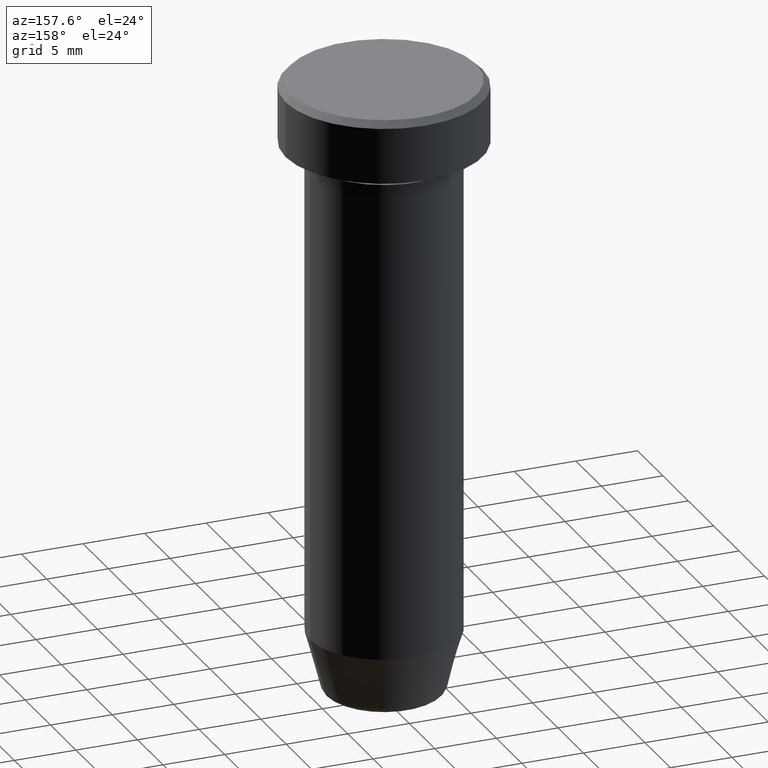
[diagram: clean part render]
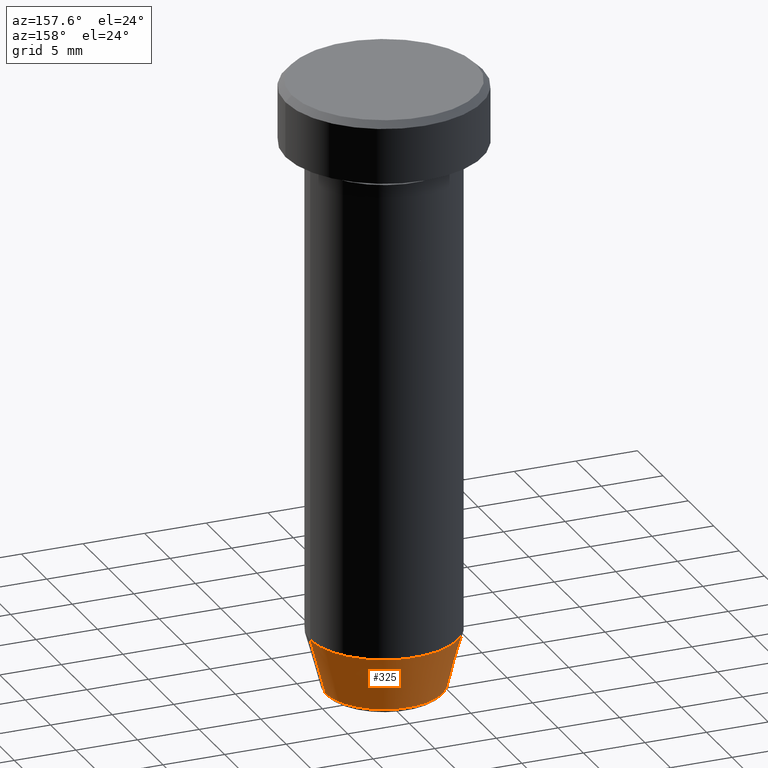
[diagram: same view with one face highlighted and labeled with its STEP entity id]
A machine part, auxiliary view. The second image highlights one B-rep face of the part: STEP entity #325.
In plain terms, the highlighted conical surface has half-angle 15 deg.
Its self-contained STEP definition (entity closure, byte-faithful):
#13 = DIRECTION ( 'NONE',  ( 1.000000000000000000, 0.000000000000000000, 0.000000000000000000 ) ) ;
#23 = ORIENTED_EDGE ( 'NONE', *, *, #183, .T. ) ;
#33 = VERTEX_POINT ( 'NONE', #175 ) ;
#54 = DIRECTION ( 'NONE',  ( -0.000000000000000000, -0.000000000000000000, 1.000000000000000000 ) ) ;
#72 = EDGE_LOOP ( 'NONE', ( #460, #23, #599, #135 ) ) ;
#80 = CARTESIAN_POINT ( 'NONE',  ( 4.660254037844383745, 0.000000000000000000, -50.00000000000000000 ) ) ;
#135 = ORIENTED_EDGE ( 'NONE', *, *, #572, .F. ) ;
#138 = AXIS2_PLACEMENT_3D ( 'NONE', #286, #343, #395 ) ;
#146 = VECTOR ( 'NONE', #461, 1000.000000000000114 ) ;
#168 = LINE ( 'NONE', #80, #146 ) ;
#175 = CARTESIAN_POINT ( 'NONE',  ( -6.000000000000000000, 7.347880794884119736E-16, -45.00000000000000000 ) ) ;
#183 = EDGE_CURVE ( 'NONE', #354, #33, #297, .T. ) ;
#213 = CIRCLE ( 'NONE', #138, 6.000000000000000000 ) ;
#244 = CARTESIAN_POINT ( 'NONE',  ( 0.000000000000000000, 0.000000000000000000, -50.00000000000000000 ) ) ;
#251 = CARTESIAN_POINT ( 'NONE',  ( 0.000000000000000000, 0.000000000000000000, -49.62940952255126348 ) ) ;
#261 = AXIS2_PLACEMENT_3D ( 'NONE', #251, #54, #568 ) ;
#286 = CARTESIAN_POINT ( 'NONE',  ( 0.000000000000000000, 0.000000000000000000, -45.00000000000000000 ) ) ;
#297 = LINE ( 'NONE', #499, #324 ) ;
#324 = VECTOR ( 'NONE', #411, 1000.000000000000114 ) ;
#325 = ADVANCED_FACE ( 'NONE', ( #566 ), #423, .T. ) ;
#341 = EDGE_CURVE ( 'NONE', #393, #33, #213, .T. ) ;
#343 = DIRECTION ( 'NONE',  ( -0.000000000000000000, -0.000000000000000000, 1.000000000000000000 ) ) ;
#346 = AXIS2_PLACEMENT_3D ( 'NONE', #244, #564, #13 ) ;
#354 = VERTEX_POINT ( 'NONE', #429 ) ;
#355 = EDGE_CURVE ( 'NONE', #364, #354, #442, .T. ) ;
#364 = VERTEX_POINT ( 'NONE', #437 ) ;
#393 = VERTEX_POINT ( 'NONE', #484 ) ;
#395 = DIRECTION ( 'NONE',  ( 1.000000000000000000, 0.000000000000000000, 0.000000000000000000 ) ) ;
#411 = DIRECTION ( 'NONE',  ( -0.2588190451025210170, 3.169619151431768639E-17, 0.9659258262890680902 ) ) ;
#423 = CONICAL_SURFACE ( 'NONE', #346, 4.660254037844383745, 0.2617993877991497409 ) ;
#429 = CARTESIAN_POINT ( 'NONE',  ( -4.759553456999439547, 6.588326350684602264E-16, -49.62940952255126348 ) ) ;
#437 = CARTESIAN_POINT ( 'NONE',  ( 4.759553456999439547, 0.000000000000000000, -49.62940952255126348 ) ) ;
#442 = CIRCLE ( 'NONE', #261, 4.759553456999439547 ) ;
#460 = ORIENTED_EDGE ( 'NONE', *, *, #355, .T. ) ;
#461 = DIRECTION ( 'NONE',  ( 0.2588190451025210170, 0.000000000000000000, 0.9659258262890680902 ) ) ;
#484 = CARTESIAN_POINT ( 'NONE',  ( 6.000000000000000000, 0.000000000000000000, -45.00000000000000000 ) ) ;
#499 = CARTESIAN_POINT ( 'NONE',  ( -4.660254037844383745, 5.707165190659652868E-16, -50.00000000000000000 ) ) ;
#564 = DIRECTION ( 'NONE',  ( -0.000000000000000000, -0.000000000000000000, 1.000000000000000000 ) ) ;
#566 = FACE_OUTER_BOUND ( 'NONE', #72, .T. ) ;
#568 = DIRECTION ( 'NONE',  ( -1.000000000000000000, 0.000000000000000000, 0.000000000000000000 ) ) ;
#572 = EDGE_CURVE ( 'NONE', #364, #393, #168, .T. ) ;
#599 = ORIENTED_EDGE ( 'NONE', *, *, #341, .F. ) ;